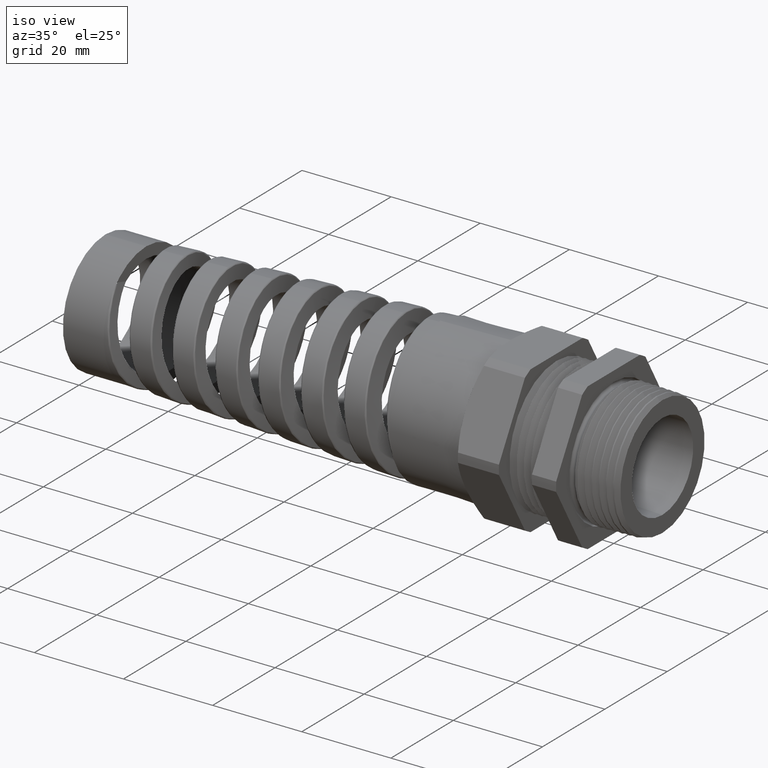
[diagram: clean part render]
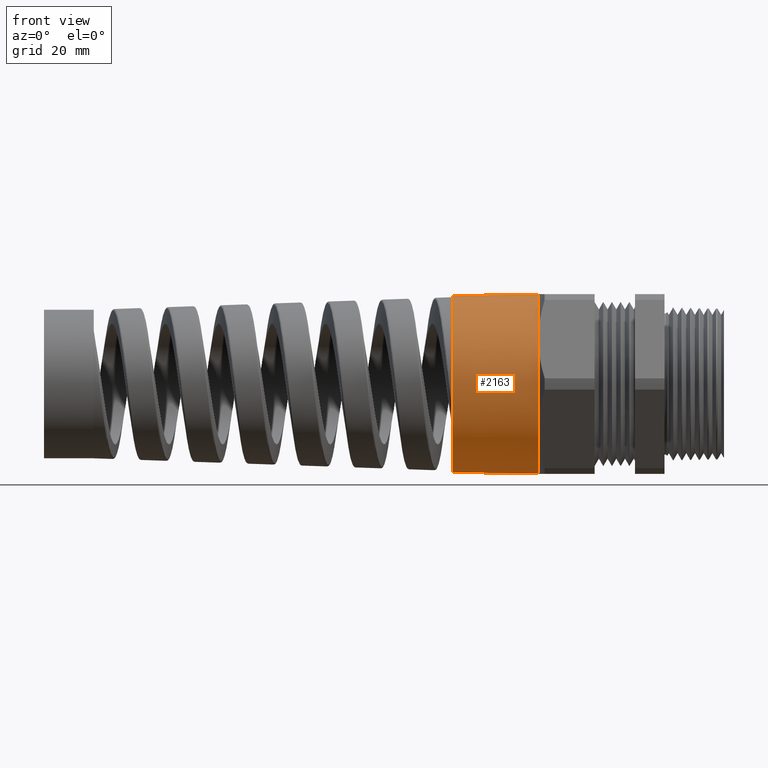
[diagram: tour spotlight — one face highlighted and labeled with its STEP entity id]
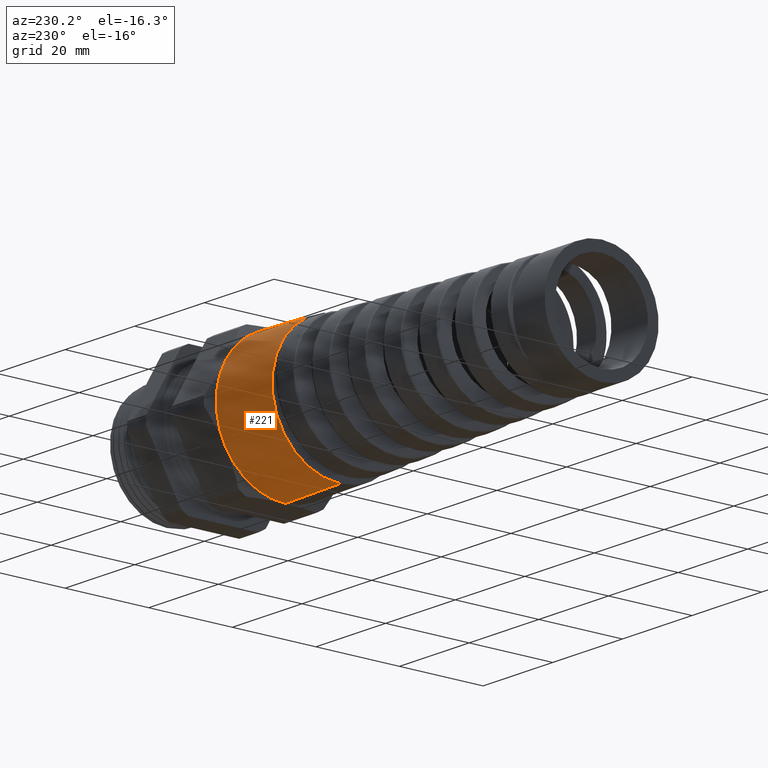
[diagram: tour spotlight — one face highlighted and labeled with its STEP entity id]
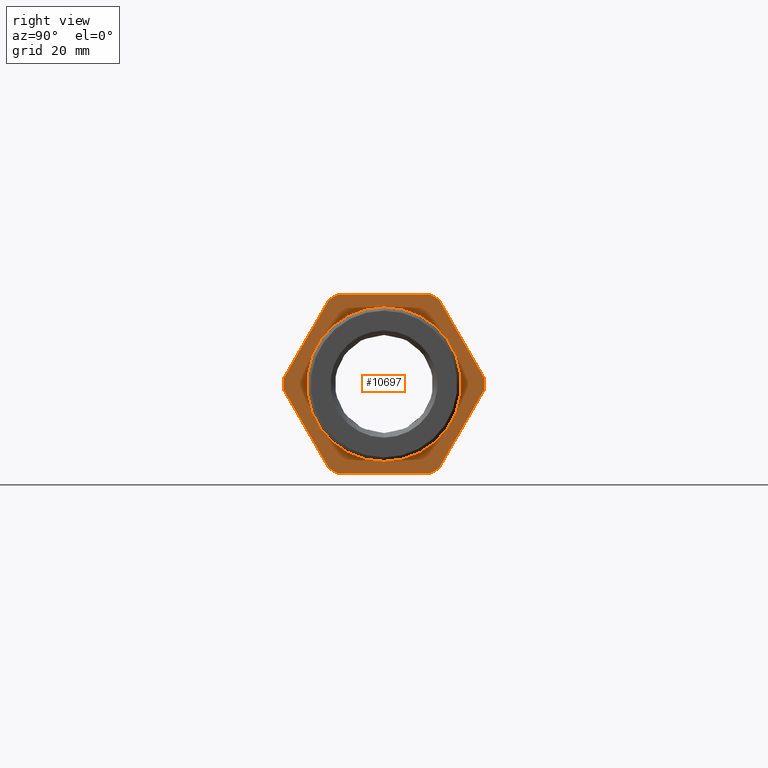
[diagram: tour spotlight — one face highlighted and labeled with its STEP entity id]
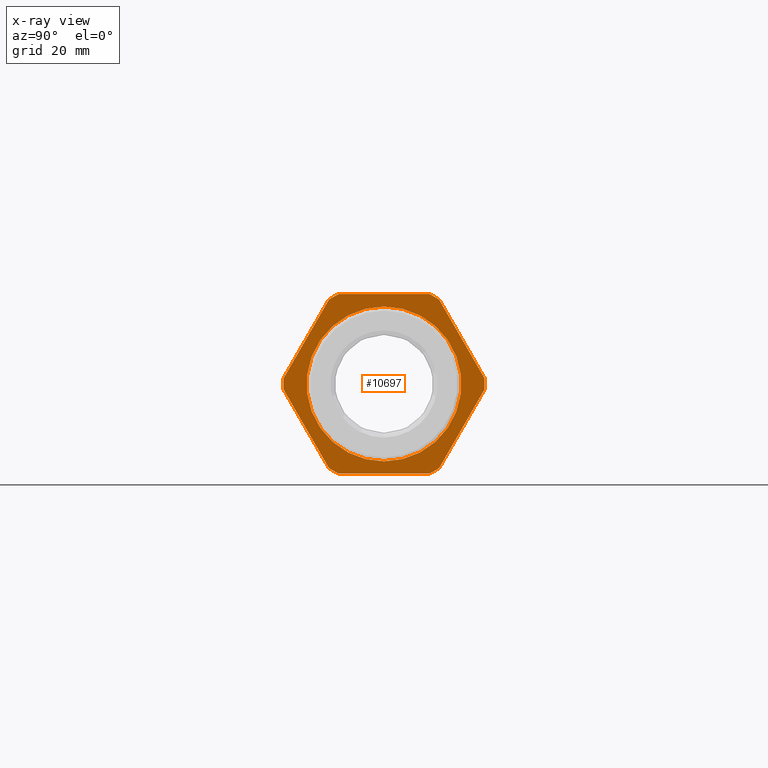
[diagram: x-ray of the same camera — body ghosted, this tour face saturated]
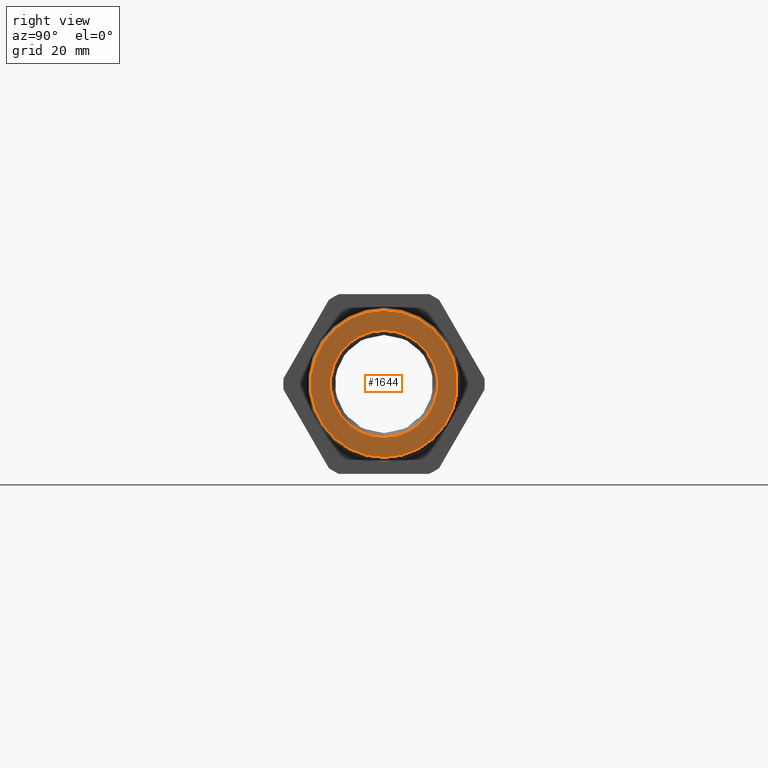
[diagram: tour spotlight — one face highlighted and labeled with its STEP entity id]
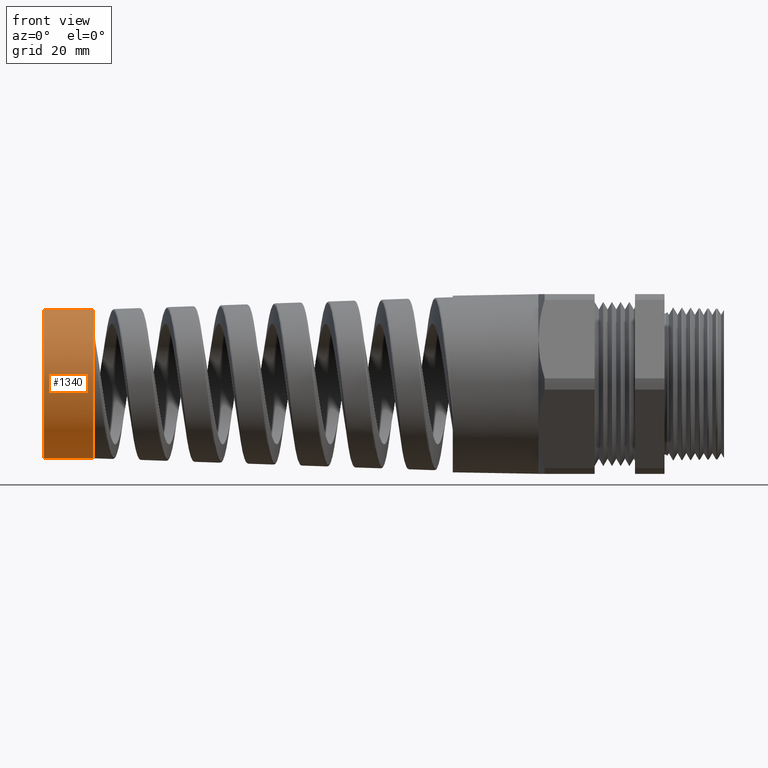
[diagram: tour spotlight — one face highlighted and labeled with its STEP entity id]
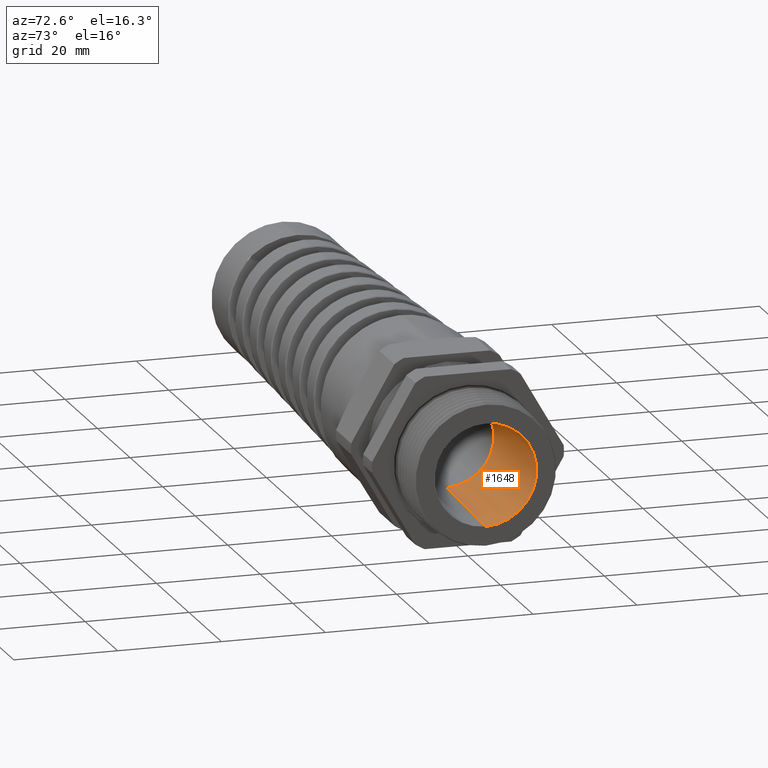
[diagram: tour spotlight — one face highlighted and labeled with its STEP entity id]
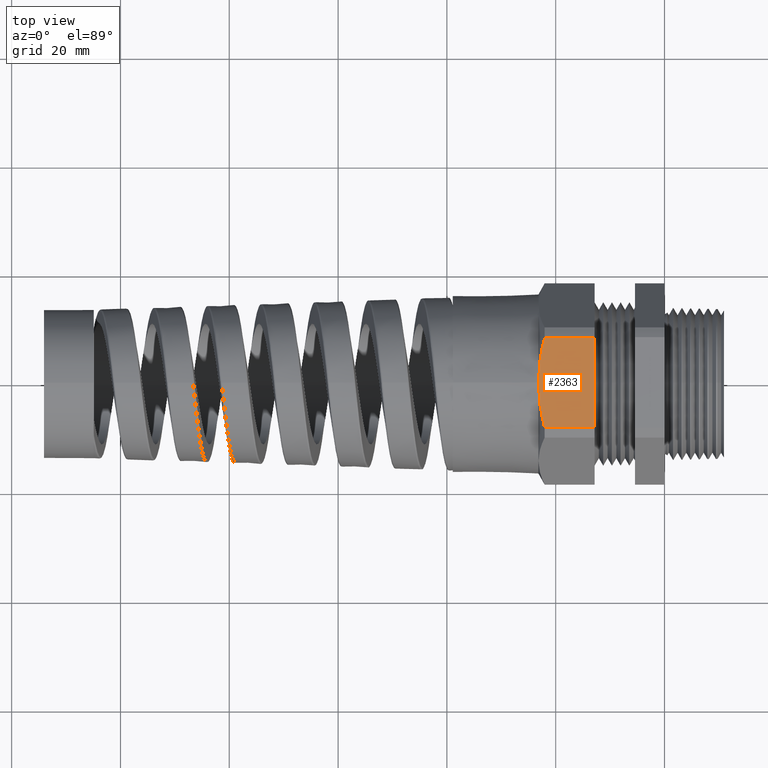
[diagram: tour spotlight — one face highlighted and labeled with its STEP entity id]
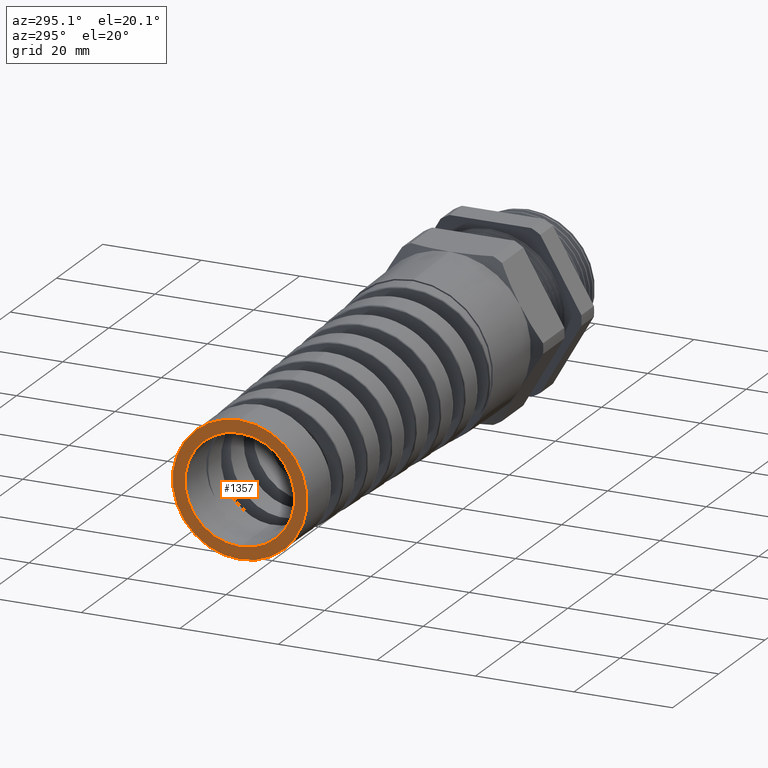
[diagram: tour spotlight — one face highlighted and labeled with its STEP entity id]
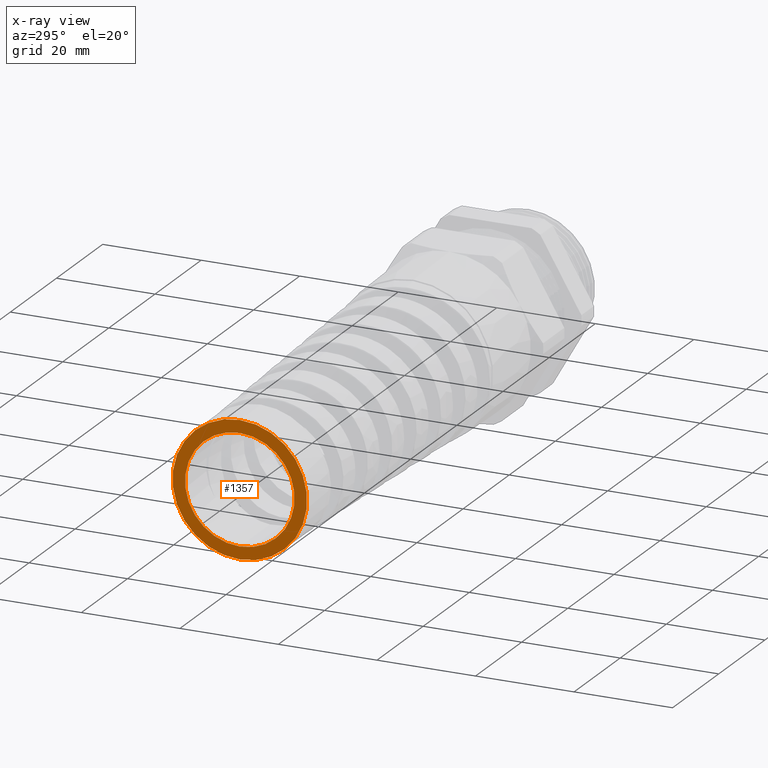
[diagram: x-ray of the same camera — body ghosted, this tour face saturated]
A machine part: a face-by-face anatomy tour. The part has 157 B-rep faces; the first image is the clean iso view, then the 8 largest visible faces are spotlighted one at a time (largest first), each with its STEP entity span.

Face 1 — front view, entity #2163. In plain terms, the highlighted conical surface has half-angle 1 deg.
Definition (entity closure, byte-faithful):
#2085 = ORIENTED_EDGE ( 'NONE', *, *, #2090, .T. ) ;
#2086 = VERTEX_POINT ( 'NONE', #9870 ) ;
#2087 = VERTEX_POINT ( 'NONE', #9869 ) ;
#2088 = ORIENTED_EDGE ( 'NONE', *, *, #2092, .F. ) ;
#2090 = EDGE_CURVE ( 'NONE', #2086, #2087, #9867, .T. ) ;
#2092 = EDGE_CURVE ( 'NONE', #2142, #2087, #9925, .T. ) ;
#2131 = ORIENTED_EDGE ( 'NONE', *, *, #2141, .T. ) ;
#2132 = ORIENTED_EDGE ( 'NONE', *, *, #2140, .T. ) ;
#2136 = VERTEX_POINT ( 'NONE', #10005 ) ;
#2137 = ORIENTED_EDGE ( 'NONE', *, *, #2138, .T. ) ;
#2138 = EDGE_CURVE ( 'NONE', #2169, #2139, #10004, .T. ) ;
#2139 = VERTEX_POINT ( 'NONE', #10000 ) ;
#2140 = EDGE_CURVE ( 'NONE', #2139, #2136, #9998, .T. ) ;
#2141 = EDGE_CURVE ( 'NONE', #2136, #2086, #9991, .T. ) ;
#2142 = VERTEX_POINT ( 'NONE', #9987 ) ;
#2158 = ORIENTED_EDGE ( 'NONE', *, *, #2165, .F. ) ;
#2163 = ADVANCED_FACE ( 'NONE', ( #10027 ), #10023, .T. ) ;
#2165 = EDGE_CURVE ( 'NONE', #2169, #2142, #10013, .T. ) ;
#2169 = VERTEX_POINT ( 'NONE', #10082 ) ;
#2170 = EDGE_LOOP ( 'NONE', ( #2158, #2137, #2132, #2131, #2085, #2088 ) ) ;
#9863 = DIRECTION ( 'NONE',  ( 0.0000000000000000000, 0.0000000000000000000, 1.000000000000000000 ) ) ;
#9864 = DIRECTION ( 'NONE',  ( -1.000000000000000000, 0.0000000000000000000, 0.0000000000000000000 ) ) ;
#9865 = CARTESIAN_POINT ( 'NONE',  ( -0.9125000000000002000, 0.0000000000000000000, 0.0000000000000000000 ) ) ;
#9866 = AXIS2_PLACEMENT_3D ( 'NONE', #9865, #9864, #9863 ) ;
#9867 = CIRCLE ( 'NONE', #9866, 0.6499999999999998000 ) ;
#9869 = CARTESIAN_POINT ( 'NONE',  ( -0.9125000000000002000, 0.0000000000000000000, 0.6499999999999998000 ) ) ;
#9870 = CARTESIAN_POINT ( 'NONE',  ( -0.9125000000000002000, -0.5629165124598850500, 0.3249999999999999600 ) ) ;
#9919 = DIRECTION ( 'NONE',  ( 0.9998476951563912700, 0.0000000000000000000, 0.01745240643728355000 ) ) ;
#9920 = VECTOR ( 'NONE', #9919, 39.37007874015748100 ) ;
#9921 = CARTESIAN_POINT ( 'NONE',  ( -0.9125000000000002000, 0.0000000000000000000, 0.6499999999999999100 ) ) ;
#9925 = LINE ( 'NONE', #9921, #9920 ) ;
#9987 = CARTESIAN_POINT ( 'NONE',  ( -1.532120000000000100, 0.0000000000000000000, 0.6391844926691776500 ) ) ;
#9988 = DIRECTION ( 'NONE',  ( 0.0000000000000000000, 0.0000000000000000000, 1.000000000000000000 ) ) ;
#9989 = DIRECTION ( 'NONE',  ( -1.000000000000000000, 0.0000000000000000000, 0.0000000000000000000 ) ) ;
#9990 = AXIS2_PLACEMENT_3D ( 'NONE', #9999, #9989, #9988 ) ;
#9991 = CIRCLE ( 'NONE', #9990, 0.6499999999999998000 ) ;
#9992 = DIRECTION ( 'NONE',  ( 0.0000000000000000000, 0.0000000000000000000, 1.000000000000000000 ) ) ;
#9994 = DIRECTION ( 'NONE',  ( -1.000000000000000000, 0.0000000000000000000, 0.0000000000000000000 ) ) ;
#9995 = CARTESIAN_POINT ( 'NONE',  ( -0.9125000000000002000, 0.0000000000000000000, 0.0000000000000000000 ) ) ;
#9997 = AXIS2_PLACEMENT_3D ( 'NONE', #9995, #9994, #9992 ) ;
#9998 = CIRCLE ( 'NONE', #9997, 0.6499999999999998000 ) ;
#9999 = CARTESIAN_POINT ( 'NONE',  ( -0.9125000000000002000, 0.0000000000000000000, 0.0000000000000000000 ) ) ;
#10000 = CARTESIAN_POINT ( 'NONE',  ( -0.9125000000000002000, 0.0000000000000000000, -0.6500000000000000200 ) ) ;
#10001 = DIRECTION ( 'NONE',  ( 0.9998476951563912700, -2.137303368083796300E-018, -0.01745240643728355000 ) ) ;
#10002 = VECTOR ( 'NONE', #10001, 39.37007874015748100 ) ;
#10003 = CARTESIAN_POINT ( 'NONE',  ( -0.9125000000000002000, -7.960204194457794200E-017, -0.6499999999999999100 ) ) ;
#10004 = LINE ( 'NONE', #10003, #10002 ) ;
#10005 = CARTESIAN_POINT ( 'NONE',  ( -0.9125000000000002000, -0.5629165124598849400, -0.3250000000000001800 ) ) ;
#10009 = DIRECTION ( 'NONE',  ( 0.0000000000000000000, 0.0000000000000000000, 1.000000000000000000 ) ) ;
#10010 = DIRECTION ( 'NONE',  ( -1.000000000000000000, 0.0000000000000000000, 0.0000000000000000000 ) ) ;
#10011 = CARTESIAN_POINT ( 'NONE',  ( -1.532120000000000100, 0.0000000000000000000, 0.0000000000000000000 ) ) ;
#10012 = AXIS2_PLACEMENT_3D ( 'NONE', #10011, #10010, #10009 ) ;
#10013 = CIRCLE ( 'NONE', #10012, 0.6391844926691776500 ) ;
#10019 = DIRECTION ( 'NONE',  ( 0.0000000000000000000, 0.0000000000000000000, 1.000000000000000000 ) ) ;
#10020 = DIRECTION ( 'NONE',  ( 1.000000000000000000, 0.0000000000000000000, 0.0000000000000000000 ) ) ;
#10021 = CARTESIAN_POINT ( 'NONE',  ( -0.9125000000000002000, 0.0000000000000000000, 0.0000000000000000000 ) ) ;
#10022 = AXIS2_PLACEMENT_3D ( 'NONE', #10021, #10020, #10019 ) ;
#10023 = CONICAL_SURFACE ( 'NONE', #10022, 0.6499999999999999100, 0.01745329251994333400 ) ;
#10027 = FACE_OUTER_BOUND ( 'NONE', #2170, .T. ) ;
#10082 = CARTESIAN_POINT ( 'NONE',  ( -1.532120000000000100, -7.893978312288564000E-017, -0.6391844926691776500 ) ) ;

Face 2 — auxiliary view, entity #221. In plain terms, the highlighted conical surface has half-angle 1 deg.
Definition (entity closure, byte-faithful):
#216 = ORIENTED_EDGE ( 'NONE', *, *, #1157, .T. ) ;
#221 = ADVANCED_FACE ( 'NONE', ( #6231 ), #6225, .T. ) ;
#817 = ORIENTED_EDGE ( 'NONE', *, *, #2138, .F. ) ;
#825 = EDGE_CURVE ( 'NONE', #2142, #2169, #3066, .T. ) ;
#841 = EDGE_LOOP ( 'NONE', ( #817, #863, #842, #845, #862, #216 ) ) ;
#842 = ORIENTED_EDGE ( 'NONE', *, *, #2092, .T. ) ;
#845 = ORIENTED_EDGE ( 'NONE', *, *, #1169, .T. ) ;
#862 = ORIENTED_EDGE ( 'NONE', *, *, #1352, .T. ) ;
#863 = ORIENTED_EDGE ( 'NONE', *, *, #825, .F. ) ;
#1157 = EDGE_CURVE ( 'NONE', #2392, #2139, #3505, .T. ) ;
#1169 = EDGE_CURVE ( 'NONE', #2087, #2537, #3483, .T. ) ;
#1352 = EDGE_CURVE ( 'NONE', #2537, #2392, #3722, .T. ) ;
#2087 = VERTEX_POINT ( 'NONE', #9869 ) ;
#2092 = EDGE_CURVE ( 'NONE', #2142, #2087, #9925, .T. ) ;
#2138 = EDGE_CURVE ( 'NONE', #2169, #2139, #10004, .T. ) ;
#2139 = VERTEX_POINT ( 'NONE', #10000 ) ;
#2142 = VERTEX_POINT ( 'NONE', #9987 ) ;
#2169 = VERTEX_POINT ( 'NONE', #10082 ) ;
#2392 = VERTEX_POINT ( 'NONE', #10608 ) ;
#2537 = VERTEX_POINT ( 'NONE', #10682 ) ;
#3065 = AXIS2_PLACEMENT_3D ( 'NONE', #3129, #3128, #3127 ) ;
#3066 = CIRCLE ( 'NONE', #3065, 0.6391844926691776500 ) ;
#3127 = DIRECTION ( 'NONE',  ( 0.0000000000000000000, 0.0000000000000000000, 1.000000000000000000 ) ) ;
#3128 = DIRECTION ( 'NONE',  ( -1.000000000000000000, 0.0000000000000000000, 0.0000000000000000000 ) ) ;
#3129 = CARTESIAN_POINT ( 'NONE',  ( -1.532120000000000100, 0.0000000000000000000, 0.0000000000000000000 ) ) ;
#3479 = DIRECTION ( 'NONE',  ( 0.0000000000000000000, 0.0000000000000000000, 1.000000000000000000 ) ) ;
#3480 = DIRECTION ( 'NONE',  ( -1.000000000000000000, 0.0000000000000000000, 0.0000000000000000000 ) ) ;
#3481 = CARTESIAN_POINT ( 'NONE',  ( -0.9125000000000002000, 0.0000000000000000000, 0.0000000000000000000 ) ) ;
#3482 = AXIS2_PLACEMENT_3D ( 'NONE', #3481, #3480, #3479 ) ;
#3483 = CIRCLE ( 'NONE', #3482, 0.6499999999999998000 ) ;
#3501 = DIRECTION ( 'NONE',  ( 0.0000000000000000000, 0.0000000000000000000, 1.000000000000000000 ) ) ;
#3502 = DIRECTION ( 'NONE',  ( -1.000000000000000000, 0.0000000000000000000, 0.0000000000000000000 ) ) ;
#3503 = CARTESIAN_POINT ( 'NONE',  ( -0.9125000000000002000, 0.0000000000000000000, 0.0000000000000000000 ) ) ;
#3504 = AXIS2_PLACEMENT_3D ( 'NONE', #3503, #3502, #3501 ) ;
#3505 = CIRCLE ( 'NONE', #3504, 0.6499999999999998000 ) ;
#3715 = DIRECTION ( 'NONE',  ( 0.0000000000000000000, 0.0000000000000000000, 1.000000000000000000 ) ) ;
#3716 = DIRECTION ( 'NONE',  ( -1.000000000000000000, 0.0000000000000000000, 0.0000000000000000000 ) ) ;
#3717 = CARTESIAN_POINT ( 'NONE',  ( -0.9125000000000002000, 0.0000000000000000000, 0.0000000000000000000 ) ) ;
#3718 = AXIS2_PLACEMENT_3D ( 'NONE', #3717, #3716, #3715 ) ;
#3722 = CIRCLE ( 'NONE', #3718, 0.6499999999999998000 ) ;
#6221 = DIRECTION ( 'NONE',  ( 0.0000000000000000000, 0.0000000000000000000, 1.000000000000000000 ) ) ;
#6222 = DIRECTION ( 'NONE',  ( 1.000000000000000000, 0.0000000000000000000, 0.0000000000000000000 ) ) ;
#6223 = CARTESIAN_POINT ( 'NONE',  ( -0.9125000000000002000, 0.0000000000000000000, 0.0000000000000000000 ) ) ;
#6224 = AXIS2_PLACEMENT_3D ( 'NONE', #6223, #6222, #6221 ) ;
#6225 = CONICAL_SURFACE ( 'NONE', #6224, 0.6499999999999999100, 0.01745329251994333400 ) ;
#6231 = FACE_OUTER_BOUND ( 'NONE', #841, .T. ) ;
#9869 = CARTESIAN_POINT ( 'NONE',  ( -0.9125000000000002000, 0.0000000000000000000, 0.6499999999999998000 ) ) ;
#9919 = DIRECTION ( 'NONE',  ( 0.9998476951563912700, 0.0000000000000000000, 0.01745240643728355000 ) ) ;
#9920 = VECTOR ( 'NONE', #9919, 39.37007874015748100 ) ;
#9921 = CARTESIAN_POINT ( 'NONE',  ( -0.9125000000000002000, 0.0000000000000000000, 0.6499999999999999100 ) ) ;
#9925 = LINE ( 'NONE', #9921, #9920 ) ;
#9987 = CARTESIAN_POINT ( 'NONE',  ( -1.532120000000000100, 0.0000000000000000000, 0.6391844926691776500 ) ) ;
#10000 = CARTESIAN_POINT ( 'NONE',  ( -0.9125000000000002000, 0.0000000000000000000, -0.6500000000000000200 ) ) ;
#10001 = DIRECTION ( 'NONE',  ( 0.9998476951563912700, -2.137303368083796300E-018, -0.01745240643728355000 ) ) ;
#10002 = VECTOR ( 'NONE', #10001, 39.37007874015748100 ) ;
#10003 = CARTESIAN_POINT ( 'NONE',  ( -0.9125000000000002000, -7.960204194457794200E-017, -0.6499999999999999100 ) ) ;
#10004 = LINE ( 'NONE', #10003, #10002 ) ;
#10082 = CARTESIAN_POINT ( 'NONE',  ( -1.532120000000000100, -7.893978312288564000E-017, -0.6391844926691776500 ) ) ;
#10608 = CARTESIAN_POINT ( 'NONE',  ( -0.9125000000000002000, 0.5629165124598850500, -0.3250000000000000100 ) ) ;
#10682 = CARTESIAN_POINT ( 'NONE',  ( -0.9125000000000002000, 0.5629165124598849400, 0.3250000000000001800 ) ) ;

Face 3 — right view, entity #10697. An x-ray twin of the same camera follows (body ghosted, this face saturated) — the face is partly hidden behind the body. In plain terms, the highlighted planar face has unit normal (-1, 0, 0).
Definition (entity closure, byte-faithful):
#5890 = VERTEX_POINT ( 'NONE', #12089 ) ;
#6000 = EDGE_CURVE ( 'NONE', #6014, #5890, #12146, .T. ) ;
#6014 = VERTEX_POINT ( 'NONE', #12141 ) ;
#6061 = EDGE_CURVE ( 'NONE', #6808, #13511, #12281, .T. ) ;
#6480 = ORIENTED_EDGE ( 'NONE', *, *, #6061, .T. ) ;
#6808 = VERTEX_POINT ( 'NONE', #12426 ) ;
#10562 = VERTEX_POINT ( 'NONE', #12664 ) ;
#10573 = EDGE_LOOP ( 'NONE', ( #10796, #12794, #13318, #12185, #13279, #13512, #13460, #13470, #13461, #13467, #6480, #13509 ) ) ;
#10697 = ADVANCED_FACE ( 'NONE', ( #12658, #12657 ), #12656, .F. ) ;
#10796 = ORIENTED_EDGE ( 'NONE', *, *, #13475, .T. ) ;
#12089 = CARTESIAN_POINT ( 'NONE',  ( 0.0000000000000000000, 0.0000000000000000000, -0.5599999999999999400 ) ) ;
#12141 = CARTESIAN_POINT ( 'NONE',  ( 0.0000000000000000000, 6.858022075225175100E-017, 0.5599999999999999400 ) ) ;
#12142 = DIRECTION ( 'NONE',  ( 0.0000000000000000000, 0.0000000000000000000, 1.000000000000000000 ) ) ;
#12143 = DIRECTION ( 'NONE',  ( 1.000000000000000000, 0.0000000000000000000, 0.0000000000000000000 ) ) ;
#12144 = CARTESIAN_POINT ( 'NONE',  ( 0.0000000000000000000, 0.0000000000000000000, 0.0000000000000000000 ) ) ;
#12145 = AXIS2_PLACEMENT_3D ( 'NONE', #12144, #12143, #12142 ) ;
#12146 = CIRCLE ( 'NONE', #12145, 0.5599999999999999400 ) ;
#12175 = VERTEX_POINT ( 'NONE', #12689 ) ;
#12185 = ORIENTED_EDGE ( 'NONE', *, *, #13314, .F. ) ;
#12278 = DIRECTION ( 'NONE',  ( 0.0000000000000000000, -0.5000000000000000000, -0.8660254037844386000 ) ) ;
#12279 = VECTOR ( 'NONE', #12278, 39.37007874015748900 ) ;
#12280 = CARTESIAN_POINT ( 'NONE',  ( 0.0000000000000000000, -0.3989927496919439800, 0.6089242856819407900 ) ) ;
#12281 = LINE ( 'NONE', #12280, #12279 ) ;
#12426 = CARTESIAN_POINT ( 'NONE',  ( 0.0000000000000000000, -0.3989927496919437600, 0.6089242856819410100 ) ) ;
#12616 = VERTEX_POINT ( 'NONE', #12684 ) ;
#12652 = DIRECTION ( 'NONE',  ( 0.0000000000000000000, 0.0000000000000000000, 1.000000000000000000 ) ) ;
#12653 = DIRECTION ( 'NONE',  ( -1.000000000000000000, 0.0000000000000000000, 0.0000000000000000000 ) ) ;
#12654 = CARTESIAN_POINT ( 'NONE',  ( 0.0000000000000000000, 0.7280000000000000900, 0.0000000000000000000 ) ) ;
#12655 = AXIS2_PLACEMENT_3D ( 'NONE', #12654, #12653, #12652 ) ;
#12656 = PLANE ( 'NONE',  #12655 ) ;
#12657 = FACE_BOUND ( 'NONE', #13514, .T. ) ;
#12658 = FACE_OUTER_BOUND ( 'NONE', #10573, .T. ) ;
#12664 = CARTESIAN_POINT ( 'NONE',  ( 0.0000000000000000000, -0.7268402752278255700, -0.04107571431805972400 ) ) ;
#12669 = VECTOR ( 'NONE', #12730, 39.37007874015748100 ) ;
#12670 = CARTESIAN_POINT ( 'NONE',  ( 0.0000000000000000000, -0.3278475255358810900, -0.6500000000000000200 ) ) ;
#12671 = LINE ( 'NONE', #12670, #12669 ) ;
#12672 = CARTESIAN_POINT ( 'NONE',  ( 0.0000000000000000000, -0.3278475255358812000, -0.6499999999999999100 ) ) ;
#12673 = DIRECTION ( 'NONE',  ( 0.0000000000000000000, 0.0000000000000000000, 1.000000000000000000 ) ) ;
#12674 = DIRECTION ( 'NONE',  ( -1.000000000000000000, 0.0000000000000000000, 0.0000000000000000000 ) ) ;
#12675 = CARTESIAN_POINT ( 'NONE',  ( 0.0000000000000000000, 0.0000000000000000000, 0.0000000000000000000 ) ) ;
#12676 = AXIS2_PLACEMENT_3D ( 'NONE', #12675, #12674, #12673 ) ;
#12677 = CIRCLE ( 'NONE', #12676, 0.7280000000000000900 ) ;
#12678 = CARTESIAN_POINT ( 'NONE',  ( 0.0000000000000000000, 0.3989927496919443200, -0.6089242856819405700 ) ) ;
#12679 = DIRECTION ( 'NONE',  ( 0.0000000000000000000, 0.5000000000000001100, 0.8660254037844386000 ) ) ;
#12680 = VECTOR ( 'NONE', #12679, 39.37007874015748100 ) ;
#12681 = CARTESIAN_POINT ( 'NONE',  ( 0.0000000000000000000, 0.3989927496919443200, -0.6089242856819405700 ) ) ;
#12682 = LINE ( 'NONE', #12681, #12680 ) ;
#12683 = CARTESIAN_POINT ( 'NONE',  ( 0.0000000000000000000, -0.3989927496919442600, -0.6089242856819405700 ) ) ;
#12684 = CARTESIAN_POINT ( 'NONE',  ( 0.0000000000000000000, 0.3278475255358810900, -0.6500000000000000200 ) ) ;
#12689 = CARTESIAN_POINT ( 'NONE',  ( 0.0000000000000000000, 0.7268402752278256800, -0.04107571431805931400 ) ) ;
#12701 = CARTESIAN_POINT ( 'NONE',  ( 0.0000000000000000000, 0.3278475255358813700, 0.6499999999999999100 ) ) ;
#12702 = LINE ( 'NONE', #12701, #12764 ) ;
#12703 = DIRECTION ( 'NONE',  ( 0.0000000000000000000, 0.0000000000000000000, 1.000000000000000000 ) ) ;
#12704 = DIRECTION ( 'NONE',  ( -1.000000000000000000, 0.0000000000000000000, 0.0000000000000000000 ) ) ;
#12705 = CARTESIAN_POINT ( 'NONE',  ( 0.0000000000000000000, 0.0000000000000000000, 0.0000000000000000000 ) ) ;
#12706 = AXIS2_PLACEMENT_3D ( 'NONE', #12705, #12704, #12703 ) ;
#12707 = CIRCLE ( 'NONE', #12706, 0.7280000000000000900 ) ;
#12708 = DIRECTION ( 'NONE',  ( 0.0000000000000000000, 0.5000000000000003300, -0.8660254037844383700 ) ) ;
#12709 = VECTOR ( 'NONE', #12708, 39.37007874015748100 ) ;
#12710 = CARTESIAN_POINT ( 'NONE',  ( 0.0000000000000000000, -0.7268402752278255700, -0.04107571431805972400 ) ) ;
#12711 = LINE ( 'NONE', #12710, #12709 ) ;
#12712 = DIRECTION ( 'NONE',  ( 0.0000000000000000000, 0.0000000000000000000, 1.000000000000000000 ) ) ;
#12713 = DIRECTION ( 'NONE',  ( -1.000000000000000000, 0.0000000000000000000, 0.0000000000000000000 ) ) ;
#12714 = CARTESIAN_POINT ( 'NONE',  ( 0.0000000000000000000, 0.0000000000000000000, 0.0000000000000000000 ) ) ;
#12715 = AXIS2_PLACEMENT_3D ( 'NONE', #12714, #12713, #12712 ) ;
#12716 = CIRCLE ( 'NONE', #12715, 0.7280000000000000900 ) ;
#12717 = CARTESIAN_POINT ( 'NONE',  ( 0.0000000000000000000, 0.3989927496919443200, 0.6089242856819405700 ) ) ;
#12718 = CARTESIAN_POINT ( 'NONE',  ( 0.0000000000000000000, -0.3278475255358813700, 0.6499999999999999100 ) ) ;
#12719 = DIRECTION ( 'NONE',  ( 0.0000000000000000000, -0.5000000000000003300, 0.8660254037844383700 ) ) ;
#12720 = VECTOR ( 'NONE', #12719, 39.37007874015748100 ) ;
#12721 = CARTESIAN_POINT ( 'NONE',  ( 0.0000000000000000000, 0.7268402752278256800, 0.04107571431805962700 ) ) ;
#12722 = LINE ( 'NONE', #12721, #12720 ) ;
#12723 = CARTESIAN_POINT ( 'NONE',  ( 0.0000000000000000000, 0.7268402752278255700, 0.04107571431805956400 ) ) ;
#12724 = CARTESIAN_POINT ( 'NONE',  ( 0.0000000000000000000, 0.3278475255358814200, 0.6499999999999998000 ) ) ;
#12725 = DIRECTION ( 'NONE',  ( 0.0000000000000000000, 0.0000000000000000000, 1.000000000000000000 ) ) ;
#12726 = DIRECTION ( 'NONE',  ( -1.000000000000000000, 0.0000000000000000000, 0.0000000000000000000 ) ) ;
#12727 = CARTESIAN_POINT ( 'NONE',  ( 0.0000000000000000000, 0.0000000000000000000, 0.0000000000000000000 ) ) ;
#12728 = AXIS2_PLACEMENT_3D ( 'NONE', #12727, #12726, #12725 ) ;
#12729 = CIRCLE ( 'NONE', #12728, 0.7280000000000000900 ) ;
#12730 = DIRECTION ( 'NONE',  ( 0.0000000000000000000, 1.000000000000000000, 0.0000000000000000000 ) ) ;
#12734 = VERTEX_POINT ( 'NONE', #12683 ) ;
#12735 = DIRECTION ( 'NONE',  ( 0.0000000000000000000, 0.0000000000000000000, 1.000000000000000000 ) ) ;
#12736 = DIRECTION ( 'NONE',  ( 1.000000000000000000, 0.0000000000000000000, 0.0000000000000000000 ) ) ;
#12737 = CARTESIAN_POINT ( 'NONE',  ( 0.0000000000000000000, 0.0000000000000000000, 0.0000000000000000000 ) ) ;
#12738 = AXIS2_PLACEMENT_3D ( 'NONE', #12737, #12736, #12735 ) ;
#12739 = CIRCLE ( 'NONE', #12738, 0.5599999999999999400 ) ;
#12741 = CARTESIAN_POINT ( 'NONE',  ( 0.0000000000000000000, -0.7268402752278255700, 0.04107571431805911300 ) ) ;
#12742 = DIRECTION ( 'NONE',  ( 0.0000000000000000000, 0.0000000000000000000, 1.000000000000000000 ) ) ;
#12743 = DIRECTION ( 'NONE',  ( -1.000000000000000000, 0.0000000000000000000, 0.0000000000000000000 ) ) ;
#12744 = CARTESIAN_POINT ( 'NONE',  ( 0.0000000000000000000, 0.0000000000000000000, 0.0000000000000000000 ) ) ;
#12745 = AXIS2_PLACEMENT_3D ( 'NONE', #12744, #12743, #12742 ) ;
#12750 = CIRCLE ( 'NONE', #12745, 0.7280000000000000900 ) ;
#12758 = DIRECTION ( 'NONE',  ( 0.0000000000000000000, 0.0000000000000000000, 1.000000000000000000 ) ) ;
#12759 = DIRECTION ( 'NONE',  ( -1.000000000000000000, 0.0000000000000000000, 0.0000000000000000000 ) ) ;
#12760 = CARTESIAN_POINT ( 'NONE',  ( 0.0000000000000000000, 0.0000000000000000000, 0.0000000000000000000 ) ) ;
#12761 = AXIS2_PLACEMENT_3D ( 'NONE', #12760, #12759, #12758 ) ;
#12762 = CIRCLE ( 'NONE', #12761, 0.7280000000000000900 ) ;
#12763 = DIRECTION ( 'NONE',  ( 0.0000000000000000000, -1.000000000000000000, 0.0000000000000000000 ) ) ;
#12764 = VECTOR ( 'NONE', #12763, 39.37007874015748100 ) ;
#12794 = ORIENTED_EDGE ( 'NONE', *, *, #13455, .F. ) ;
#13246 = EDGE_CURVE ( 'NONE', #13277, #12175, #12682, .T. ) ;
#13277 = VERTEX_POINT ( 'NONE', #12678 ) ;
#13279 = ORIENTED_EDGE ( 'NONE', *, *, #13246, .T. ) ;
#13314 = EDGE_CURVE ( 'NONE', #13277, #12616, #12677, .T. ) ;
#13315 = VERTEX_POINT ( 'NONE', #12672 ) ;
#13317 = EDGE_CURVE ( 'NONE', #13315, #12616, #12671, .T. ) ;
#13318 = ORIENTED_EDGE ( 'NONE', *, *, #13317, .T. ) ;
#13455 = EDGE_CURVE ( 'NONE', #13315, #12734, #12729, .T. ) ;
#13460 = ORIENTED_EDGE ( 'NONE', *, *, #13466, .T. ) ;
#13461 = ORIENTED_EDGE ( 'NONE', *, *, #13478, .T. ) ;
#13462 = VERTEX_POINT ( 'NONE', #12724 ) ;
#13463 = VERTEX_POINT ( 'NONE', #12723 ) ;
#13466 = EDGE_CURVE ( 'NONE', #13463, #13471, #12722, .T. ) ;
#13467 = ORIENTED_EDGE ( 'NONE', *, *, #13476, .F. ) ;
#13469 = VERTEX_POINT ( 'NONE', #12718 ) ;
#13470 = ORIENTED_EDGE ( 'NONE', *, *, #13474, .F. ) ;
#13471 = VERTEX_POINT ( 'NONE', #12717 ) ;
#13474 = EDGE_CURVE ( 'NONE', #13462, #13471, #12716, .T. ) ;
#13475 = EDGE_CURVE ( 'NONE', #10562, #12734, #12711, .T. ) ;
#13476 = EDGE_CURVE ( 'NONE', #6808, #13469, #12707, .T. ) ;
#13478 = EDGE_CURVE ( 'NONE', #13462, #13469, #12702, .T. ) ;
#13502 = EDGE_CURVE ( 'NONE', #13463, #12175, #12762, .T. ) ;
#13504 = ORIENTED_EDGE ( 'NONE', *, *, #6000, .F. ) ;
#13509 = ORIENTED_EDGE ( 'NONE', *, *, #13510, .F. ) ;
#13510 = EDGE_CURVE ( 'NONE', #10562, #13511, #12750, .T. ) ;
#13511 = VERTEX_POINT ( 'NONE', #12741 ) ;
#13512 = ORIENTED_EDGE ( 'NONE', *, *, #13502, .F. ) ;
#13514 = EDGE_LOOP ( 'NONE', ( #13516, #13504 ) ) ;
#13515 = EDGE_CURVE ( 'NONE', #5890, #6014, #12739, .T. ) ;
#13516 = ORIENTED_EDGE ( 'NONE', *, *, #13515, .F. ) ;

Face 4 — right view, entity #1644. In plain terms, the highlighted planar face has unit normal (-1, 0, 0).
Definition (entity closure, byte-faithful):
#275 = VERTEX_POINT ( 'NONE', #2811 ) ;
#729 = EDGE_CURVE ( 'NONE', #10827, #8432, #2986, .T. ) ;
#1142 = VERTEX_POINT ( 'NONE', #3460 ) ;
#1497 = ORIENTED_EDGE ( 'NONE', *, *, #1682, .T. ) ;
#1498 = EDGE_LOOP ( 'NONE', ( #1497, #1831 ) ) ;
#1514 = EDGE_LOOP ( 'NONE', ( #1519, #1518 ) ) ;
#1518 = ORIENTED_EDGE ( 'NONE', *, *, #10677, .T. ) ;
#1519 = ORIENTED_EDGE ( 'NONE', *, *, #729, .T. ) ;
#1644 = ADVANCED_FACE ( 'NONE', ( #9172, #9171 ), #9170, .F. ) ;
#1645 = EDGE_CURVE ( 'NONE', #275, #1142, #9256, .T. ) ;
#1682 = EDGE_CURVE ( 'NONE', #1142, #275, #9328, .T. ) ;
#1831 = ORIENTED_EDGE ( 'NONE', *, *, #1645, .T. ) ;
#2811 = CARTESIAN_POINT ( 'NONE',  ( 0.4299999999999999400, 4.747710957284751000E-017, 0.3876800201160279200 ) ) ;
#2982 = DIRECTION ( 'NONE',  ( 0.0000000000000000000, 0.0000000000000000000, 1.000000000000000000 ) ) ;
#2983 = DIRECTION ( 'NONE',  ( 1.000000000000000000, 0.0000000000000000000, 0.0000000000000000000 ) ) ;
#2984 = CARTESIAN_POINT ( 'NONE',  ( 0.4299999999999999400, 0.0000000000000000000, 0.0000000000000000000 ) ) ;
#2985 = AXIS2_PLACEMENT_3D ( 'NONE', #2984, #2983, #2982 ) ;
#2986 = CIRCLE ( 'NONE', #2985, 0.5312400537252496300 ) ;
#3460 = CARTESIAN_POINT ( 'NONE',  ( 0.4299999999999999400, 0.0000000000000000000, -0.3876800201160279200 ) ) ;
#8432 = VERTEX_POINT ( 'NONE', #12531 ) ;
#9170 = PLANE ( 'NONE',  #9263 ) ;
#9171 = FACE_BOUND ( 'NONE', #1498, .T. ) ;
#9172 = FACE_OUTER_BOUND ( 'NONE', #1514, .T. ) ;
#9252 = DIRECTION ( 'NONE',  ( 0.0000000000000000000, 0.0000000000000000000, 1.000000000000000000 ) ) ;
#9254 = DIRECTION ( 'NONE',  ( -1.000000000000000000, 0.0000000000000000000, 0.0000000000000000000 ) ) ;
#9255 = AXIS2_PLACEMENT_3D ( 'NONE', #9264, #9254, #9252 ) ;
#9256 = CIRCLE ( 'NONE', #9255, 0.3876800201160279200 ) ;
#9259 = DIRECTION ( 'NONE',  ( 0.0000000000000000000, 0.0000000000000000000, 1.000000000000000000 ) ) ;
#9260 = DIRECTION ( 'NONE',  ( -1.000000000000000000, 0.0000000000000000000, 0.0000000000000000000 ) ) ;
#9261 = CARTESIAN_POINT ( 'NONE',  ( 0.4299999999999999400, 0.5437400537252496900, 0.0000000000000000000 ) ) ;
#9263 = AXIS2_PLACEMENT_3D ( 'NONE', #9261, #9260, #9259 ) ;
#9264 = CARTESIAN_POINT ( 'NONE',  ( 0.4299999999999999400, 0.0000000000000000000, 0.0000000000000000000 ) ) ;
#9322 = DIRECTION ( 'NONE',  ( 0.0000000000000000000, 0.0000000000000000000, 1.000000000000000000 ) ) ;
#9324 = DIRECTION ( 'NONE',  ( -1.000000000000000000, 0.0000000000000000000, 0.0000000000000000000 ) ) ;
#9326 = CARTESIAN_POINT ( 'NONE',  ( 0.4299999999999999400, 0.0000000000000000000, 0.0000000000000000000 ) ) ;
#9327 = AXIS2_PLACEMENT_3D ( 'NONE', #9326, #9324, #9322 ) ;
#9328 = CIRCLE ( 'NONE', #9327, 0.3876800201160279200 ) ;
#10677 = EDGE_CURVE ( 'NONE', #8432, #10827, #12663, .T. ) ;
#10827 = VERTEX_POINT ( 'NONE', #12651 ) ;
#12531 = CARTESIAN_POINT ( 'NONE',  ( 0.4299999999999999400, 6.516468505405927200E-017, -0.5312400537252496300 ) ) ;
#12651 = CARTESIAN_POINT ( 'NONE',  ( 0.4299999999999999400, 0.0000000000000000000, 0.5312400537252496300 ) ) ;
#12659 = DIRECTION ( 'NONE',  ( 0.0000000000000000000, 0.0000000000000000000, 1.000000000000000000 ) ) ;
#12660 = DIRECTION ( 'NONE',  ( 1.000000000000000000, 0.0000000000000000000, 0.0000000000000000000 ) ) ;
#12661 = CARTESIAN_POINT ( 'NONE',  ( 0.4299999999999999400, 0.0000000000000000000, 0.0000000000000000000 ) ) ;
#12662 = AXIS2_PLACEMENT_3D ( 'NONE', #12661, #12660, #12659 ) ;
#12663 = CIRCLE ( 'NONE', #12662, 0.5312400537252496300 ) ;

Face 5 — front view, entity #1340. In plain terms, the highlighted cylindrical surface (partial cylindrical patch) has radius 13.6545 mm, axis along (1, 0, 0).
Definition (entity closure, byte-faithful):
#522 = VERTEX_POINT ( 'NONE', #2834 ) ;
#523 = VERTEX_POINT ( 'NONE', #2833 ) ;
#532 = VERTEX_POINT ( 'NONE', #2966 ) ;
#536 = EDGE_CURVE ( 'NONE', #532, #523, #2960, .T. ) ;
#1339 = EDGE_LOOP ( 'NONE', ( #1375, #1383, #1374, #1368, #1389 ) ) ;
#1340 = ADVANCED_FACE ( 'NONE', ( #3676 ), #3675, .T. ) ;
#1359 = EDGE_CURVE ( 'NONE', #522, #532, #3707, .T. ) ;
#1363 = EDGE_CURVE ( 'NONE', #1413, #523, #3700, .T. ) ;
#1368 = ORIENTED_EDGE ( 'NONE', *, *, #1410, .F. ) ;
#1374 = ORIENTED_EDGE ( 'NONE', *, *, #1658, .T. ) ;
#1375 = ORIENTED_EDGE ( 'NONE', *, *, #536, .F. ) ;
#1383 = ORIENTED_EDGE ( 'NONE', *, *, #1359, .F. ) ;
#1389 = ORIENTED_EDGE ( 'NONE', *, *, #1363, .T. ) ;
#1410 = EDGE_CURVE ( 'NONE', #1413, #1688, #8718, .T. ) ;
#1413 = VERTEX_POINT ( 'NONE', #8719 ) ;
#1658 = EDGE_CURVE ( 'NONE', #522, #1688, #9304, .T. ) ;
#1688 = VERTEX_POINT ( 'NONE', #9371 ) ;
#2833 = CARTESIAN_POINT ( 'NONE',  ( -4.130799999999999800, 6.583458507736329500E-017, 0.5375801833083619900 ) ) ;
#2834 = CARTESIAN_POINT ( 'NONE',  ( -4.489999999999999300, 0.0000000000000000000, -0.5375801833083619900 ) ) ;
#2957 = DIRECTION ( 'NONE',  ( 1.000000000000000000, 0.0000000000000000000, 0.0000000000000000000 ) ) ;
#2958 = VECTOR ( 'NONE', #2957, 39.37007874015748100 ) ;
#2959 = CARTESIAN_POINT ( 'NONE',  ( -4.489999999999999300, 6.583458507736329500E-017, 0.5375801833083619900 ) ) ;
#2960 = LINE ( 'NONE', #2959, #2958 ) ;
#2966 = CARTESIAN_POINT ( 'NONE',  ( -4.489999999999999300, 6.583458507736329500E-017, 0.5375801833083619900 ) ) ;
#3671 = DIRECTION ( 'NONE',  ( 0.0000000000000000000, 0.0000000000000000000, -1.000000000000000000 ) ) ;
#3672 = DIRECTION ( 'NONE',  ( 1.000000000000000000, 0.0000000000000000000, 0.0000000000000000000 ) ) ;
#3673 = AXIS2_PLACEMENT_3D ( 'NONE', #3681, #3672, #3671 ) ;
#3675 = CYLINDRICAL_SURFACE ( 'NONE', #3673, 0.5375801833083619900 ) ;
#3676 = FACE_OUTER_BOUND ( 'NONE', #1339, .T. ) ;
#3681 = CARTESIAN_POINT ( 'NONE',  ( -4.489999999999999300, 0.0000000000000000000, 0.0000000000000000000 ) ) ;
#3692 = DIRECTION ( 'NONE',  ( 0.0000000000000000000, 0.0000000000000000000, 1.000000000000000000 ) ) ;
#3693 = DIRECTION ( 'NONE',  ( -1.000000000000000000, 0.0000000000000000000, 0.0000000000000000000 ) ) ;
#3694 = CARTESIAN_POINT ( 'NONE',  ( -4.130799999999999800, 0.0000000000000000000, 0.0000000000000000000 ) ) ;
#3695 = AXIS2_PLACEMENT_3D ( 'NONE', #3694, #3693, #3692 ) ;
#3700 = CIRCLE ( 'NONE', #3695, 0.5375801833083619900 ) ;
#3703 = DIRECTION ( 'NONE',  ( 0.0000000000000000000, 0.0000000000000000000, 1.000000000000000000 ) ) ;
#3704 = DIRECTION ( 'NONE',  ( -1.000000000000000000, 0.0000000000000000000, 0.0000000000000000000 ) ) ;
#3705 = CARTESIAN_POINT ( 'NONE',  ( -4.489999999999999300, 0.0000000000000000000, 0.0000000000000000000 ) ) ;
#3706 = AXIS2_PLACEMENT_3D ( 'NONE', #3705, #3704, #3703 ) ;
#3707 = CIRCLE ( 'NONE', #3706, 0.5375801833083619900 ) ;
#8714 = DIRECTION ( 'NONE',  ( 0.0000000000000000000, 0.0000000000000000000, -1.000000000000000000 ) ) ;
#8715 = DIRECTION ( 'NONE',  ( 1.000000000000000000, 0.0000000000000000000, 0.0000000000000000000 ) ) ;
#8716 = CARTESIAN_POINT ( 'NONE',  ( -4.130799999999999800, 0.0000000000000000000, 0.0000000000000000000 ) ) ;
#8717 = AXIS2_PLACEMENT_3D ( 'NONE', #8716, #8715, #8714 ) ;
#8718 = CIRCLE ( 'NONE', #8717, 0.5375801833083612100 ) ;
#8719 = CARTESIAN_POINT ( 'NONE',  ( -4.130799999999999800, -0.4267726802073139600, 0.3268907048456988200 ) ) ;
#9300 = DIRECTION ( 'NONE',  ( 1.000000000000000000, 0.0000000000000000000, 0.0000000000000000000 ) ) ;
#9301 = VECTOR ( 'NONE', #9300, 39.37007874015748100 ) ;
#9303 = CARTESIAN_POINT ( 'NONE',  ( -4.489999999999999300, 0.0000000000000000000, -0.5375801833083619900 ) ) ;
#9304 = LINE ( 'NONE', #9303, #9301 ) ;
#9371 = CARTESIAN_POINT ( 'NONE',  ( -4.130799999999999800, 0.0000000000000000000, -0.5375801833083612100 ) ) ;

Face 6 — auxiliary view, entity #1648. In plain terms, the highlighted conical surface has half-angle 2 deg.
Definition (entity closure, byte-faithful):
#275 = VERTEX_POINT ( 'NONE', #2811 ) ;
#996 = VERTEX_POINT ( 'NONE', #3361 ) ;
#1003 = VERTEX_POINT ( 'NONE', #3406 ) ;
#1135 = EDGE_CURVE ( 'NONE', #996, #275, #3413, .T. ) ;
#1139 = EDGE_CURVE ( 'NONE', #1003, #1142, #3474, .T. ) ;
#1142 = VERTEX_POINT ( 'NONE', #3460 ) ;
#1476 = EDGE_LOOP ( 'NONE', ( #1646, #1643, #1638, #1647 ) ) ;
#1538 = EDGE_CURVE ( 'NONE', #996, #1003, #9203, .T. ) ;
#1638 = ORIENTED_EDGE ( 'NONE', *, *, #1139, .T. ) ;
#1643 = ORIENTED_EDGE ( 'NONE', *, *, #1538, .T. ) ;
#1645 = EDGE_CURVE ( 'NONE', #275, #1142, #9256, .T. ) ;
#1646 = ORIENTED_EDGE ( 'NONE', *, *, #1135, .F. ) ;
#1647 = ORIENTED_EDGE ( 'NONE', *, *, #1645, .F. ) ;
#1648 = ADVANCED_FACE ( 'NONE', ( #9250 ), #9249, .F. ) ;
#2811 = CARTESIAN_POINT ( 'NONE',  ( 0.4299999999999999400, 4.747710957284751000E-017, 0.3876800201160279200 ) ) ;
#3361 = CARTESIAN_POINT ( 'NONE',  ( -0.5058333333333334700, 0.0000000000000000000, 0.3549999999999999800 ) ) ;
#3406 = CARTESIAN_POINT ( 'NONE',  ( -0.5058333333333334700, 4.347496136973103500E-017, -0.3549999999999999800 ) ) ;
#3412 = CARTESIAN_POINT ( 'NONE',  ( -0.5058333333333334700, 4.347496136973103500E-017, 0.3549999999999999800 ) ) ;
#3413 = LINE ( 'NONE', #3412, #3478 ) ;
#3460 = CARTESIAN_POINT ( 'NONE',  ( 0.4299999999999999400, 0.0000000000000000000, -0.3876800201160279200 ) ) ;
#3467 = DIRECTION ( 'NONE',  ( 0.9993908270190957600, 0.0000000000000000000, -0.03489949670250173200 ) ) ;
#3468 = VECTOR ( 'NONE', #3467, 39.37007874015748900 ) ;
#3469 = CARTESIAN_POINT ( 'NONE',  ( -0.5058333333333334700, 0.0000000000000000000, -0.3549999999999999800 ) ) ;
#3474 = LINE ( 'NONE', #3469, #3468 ) ;
#3477 = DIRECTION ( 'NONE',  ( 0.9993908270190957600, 4.273955692857235800E-018, 0.03489949670250173200 ) ) ;
#3478 = VECTOR ( 'NONE', #3477, 39.37007874015748900 ) ;
#9197 = DIRECTION ( 'NONE',  ( 0.0000000000000000000, 0.0000000000000000000, 1.000000000000000000 ) ) ;
#9199 = DIRECTION ( 'NONE',  ( -1.000000000000000000, 0.0000000000000000000, 0.0000000000000000000 ) ) ;
#9200 = CARTESIAN_POINT ( 'NONE',  ( -0.5058333333333334700, 0.0000000000000000000, 0.0000000000000000000 ) ) ;
#9201 = AXIS2_PLACEMENT_3D ( 'NONE', #9200, #9199, #9197 ) ;
#9203 = CIRCLE ( 'NONE', #9201, 0.3549999999999999800 ) ;
#9244 = DIRECTION ( 'NONE',  ( 0.0000000000000000000, 0.0000000000000000000, -1.000000000000000000 ) ) ;
#9245 = DIRECTION ( 'NONE',  ( 1.000000000000000000, 0.0000000000000000000, 0.0000000000000000000 ) ) ;
#9246 = CARTESIAN_POINT ( 'NONE',  ( -0.5058333333333334700, 0.0000000000000000000, 0.0000000000000000000 ) ) ;
#9247 = AXIS2_PLACEMENT_3D ( 'NONE', #9246, #9245, #9244 ) ;
#9249 = CONICAL_SURFACE ( 'NONE', #9247, 0.3549999999999999800, 0.03490658503988735400 ) ;
#9250 = FACE_OUTER_BOUND ( 'NONE', #1476, .T. ) ;
#9252 = DIRECTION ( 'NONE',  ( 0.0000000000000000000, 0.0000000000000000000, 1.000000000000000000 ) ) ;
#9254 = DIRECTION ( 'NONE',  ( -1.000000000000000000, 0.0000000000000000000, 0.0000000000000000000 ) ) ;
#9255 = AXIS2_PLACEMENT_3D ( 'NONE', #9264, #9254, #9252 ) ;
#9256 = CIRCLE ( 'NONE', #9255, 0.3876800201160279200 ) ;
#9264 = CARTESIAN_POINT ( 'NONE',  ( 0.4299999999999999400, 0.0000000000000000000, 0.0000000000000000000 ) ) ;

Face 7 — top view, entity #2363. In plain terms, the highlighted planar face has unit normal (0, 0, 1).
Definition (entity closure, byte-faithful):
#1850 = VERTEX_POINT ( 'NONE', #9820 ) ;
#2087 = VERTEX_POINT ( 'NONE', #9869 ) ;
#2247 = VERTEX_POINT ( 'NONE', #10348 ) ;
#2339 = EDGE_LOOP ( 'NONE', ( #2393, #2396, #2395, #2389, #2388 ) ) ;
#2363 = ADVANCED_FACE ( 'NONE', ( #10522 ), #10521, .T. ) ;
#2370 = VERTEX_POINT ( 'NONE', #10512 ) ;
#2385 = EDGE_CURVE ( 'NONE', #2247, #1850, #10546, .T. ) ;
#2387 = EDGE_CURVE ( 'NONE', #1850, #13848, #10531, .T. ) ;
#2388 = ORIENTED_EDGE ( 'NONE', *, *, #2387, .T. ) ;
#2389 = ORIENTED_EDGE ( 'NONE', *, *, #2385, .T. ) ;
#2390 = EDGE_CURVE ( 'NONE', #2087, #2247, #10525, .T. ) ;
#2393 = ORIENTED_EDGE ( 'NONE', *, *, #13845, .F. ) ;
#2395 = ORIENTED_EDGE ( 'NONE', *, *, #2390, .T. ) ;
#2396 = ORIENTED_EDGE ( 'NONE', *, *, #2397, .T. ) ;
#2397 = EDGE_CURVE ( 'NONE', #2370, #2087, #10585, .T. ) ;
#9820 = CARTESIAN_POINT ( 'NONE',  ( -0.5058333333333336900, -0.3278475255358813700, 0.6499999999999999100 ) ) ;
#9869 = CARTESIAN_POINT ( 'NONE',  ( -0.9125000000000002000, 0.0000000000000000000, 0.6499999999999998000 ) ) ;
#10348 = CARTESIAN_POINT ( 'NONE',  ( -0.8674666790032094000, -0.3278475255358813700, 0.6499999999999999100 ) ) ;
#10512 = CARTESIAN_POINT ( 'NONE',  ( -0.8674666790032094000, 0.3278475255358814200, 0.6499999999999999100 ) ) ;
#10517 = DIRECTION ( 'NONE',  ( 1.000000000000000000, 0.0000000000000000000, 0.0000000000000000000 ) ) ;
#10518 = DIRECTION ( 'NONE',  ( 0.0000000000000000000, 0.0000000000000000000, 1.000000000000000000 ) ) ;
#10519 = CARTESIAN_POINT ( 'NONE',  ( -2.992185896283379200, 0.3278475255358813700, 0.6499999999999999100 ) ) ;
#10520 = AXIS2_PLACEMENT_3D ( 'NONE', #10519, #10518, #10517 ) ;
#10521 = PLANE ( 'NONE',  #10520 ) ;
#10522 = FACE_OUTER_BOUND ( 'NONE', #2339, .T. ) ;
#10525 = B_SPLINE_CURVE_WITH_KNOTS ( 'NONE', 3,
 ( #10607, #10606, #10605, #10603, #10602, #10601, #10600, #10599 ),
 .UNSPECIFIED., .F., .F.,
 ( 4, 2, 2, 4 ),
 ( 0.01739181220317290200, 0.02158069912191297100, 0.02367514258128300400, 0.02576958604065303700 ),
 .UNSPECIFIED. ) ;
#10527 = DIRECTION ( 'NONE',  ( 0.0000000000000000000, 1.000000000000000000, 0.0000000000000000000 ) ) ;
#10529 = VECTOR ( 'NONE', #10527, 39.37007874015748100 ) ;
#10530 = CARTESIAN_POINT ( 'NONE',  ( -0.5058333333333334700, 0.5936000000000000200, 0.6499999999999999100 ) ) ;
#10531 = LINE ( 'NONE', #10530, #10529 ) ;
#10543 = DIRECTION ( 'NONE',  ( 1.000000000000000000, 0.0000000000000000000, 0.0000000000000000000 ) ) ;
#10544 = VECTOR ( 'NONE', #10543, 39.37007874015748100 ) ;
#10545 = CARTESIAN_POINT ( 'NONE',  ( -2.992185896283379200, -0.3278475255358813700, 0.6499999999999999100 ) ) ;
#10546 = LINE ( 'NONE', #10545, #10544 ) ;
#10568 = CARTESIAN_POINT ( 'NONE',  ( -0.9125000000000002000, 0.0000000000000000000, 0.6499999999999998000 ) ) ;
#10569 = CARTESIAN_POINT ( 'NONE',  ( -0.9124999999999998700, 0.02757395173295366900, 0.6499999999999999100 ) ) ;
#10571 = CARTESIAN_POINT ( 'NONE',  ( -0.9114828998118287300, 0.05520937727278987100, 0.6500000000000000200 ) ) ;
#10572 = CARTESIAN_POINT ( 'NONE',  ( -0.9074366153313308000, 0.1106018392528325400, 0.6499999999999999100 ) ) ;
#10574 = CARTESIAN_POINT ( 'NONE',  ( -0.9043942047105485400, 0.1384053176497999900, 0.6500000000000000200 ) ) ;
#10575 = CARTESIAN_POINT ( 'NONE',  ( -0.8926398588338331200, 0.2207514117670415500, 0.6499999999999995800 ) ) ;
#10577 = CARTESIAN_POINT ( 'NONE',  ( -0.8812974929125843000, 0.2746528903789683400, 0.6499999999999994700 ) ) ;
#10579 = CARTESIAN_POINT ( 'NONE',  ( -0.8674666790032094000, 0.3278475255358814200, 0.6499999999999999100 ) ) ;
#10585 = B_SPLINE_CURVE_WITH_KNOTS ( 'NONE', 3,
 ( #10579, #10577, #10575, #10574, #10572, #10571, #10569, #10568 ),
 .UNSPECIFIED., .F., .F.,
 ( 4, 2, 2, 4 ),
 ( 0.009017509672233204800, 0.01320466093770305400, 0.01529823657043797800, 0.01739181220317290200 ),
 .UNSPECIFIED. ) ;
#10599 = CARTESIAN_POINT ( 'NONE',  ( -0.8674666790032094000, -0.3278475255358813700, 0.6499999999999999100 ) ) ;
#10600 = CARTESIAN_POINT ( 'NONE',  ( -0.8744367178327194800, -0.3010400885336386200, 0.6499999999999998000 ) ) ;
#10601 = CARTESIAN_POINT ( 'NONE',  ( -0.8807998016950016100, -0.2739378481188157700, 0.6499999999999999100 ) ) ;
#10602 = CARTESIAN_POINT ( 'NONE',  ( -0.8919638526390668600, -0.2194418430247451800, 0.6499999999999998000 ) ) ;
#10603 = CARTESIAN_POINT ( 'NONE',  ( -0.8967461303935014800, -0.1921455035121697200, 0.6499999999999995800 ) ) ;
#10605 = CARTESIAN_POINT ( 'NONE',  ( -0.9083882884326687200, -0.1100930136818984000, 0.6499999999999998000 ) ) ;
#10606 = CARTESIAN_POINT ( 'NONE',  ( -0.9124999999999998700, -0.05517076331331370600, 0.6499999999999998000 ) ) ;
#10607 = CARTESIAN_POINT ( 'NONE',  ( -0.9125000000000002000, 0.0000000000000000000, 0.6499999999999998000 ) ) ;
#13021 = CARTESIAN_POINT ( 'NONE',  ( -0.5058333333333336900, 0.3278475255358814200, 0.6499999999999998000 ) ) ;
#13027 = DIRECTION ( 'NONE',  ( 1.000000000000000000, 0.0000000000000000000, 0.0000000000000000000 ) ) ;
#13028 = VECTOR ( 'NONE', #13027, 39.37007874015748100 ) ;
#13029 = CARTESIAN_POINT ( 'NONE',  ( -2.992185896283379200, 0.3278475255358814200, 0.6499999999999998000 ) ) ;
#13030 = LINE ( 'NONE', #13029, #13028 ) ;
#13845 = EDGE_CURVE ( 'NONE', #2370, #13848, #13030, .T. ) ;
#13848 = VERTEX_POINT ( 'NONE', #13021 ) ;

Face 8 — auxiliary view, entity #1357. An x-ray twin of the same camera follows (body ghosted, this face saturated) — the face is partly hidden behind the body. In plain terms, the highlighted planar face has unit normal (-1, 0, 0).
Definition (entity closure, byte-faithful):
#522 = VERTEX_POINT ( 'NONE', #2834 ) ;
#532 = VERTEX_POINT ( 'NONE', #2966 ) ;
#553 = EDGE_CURVE ( 'NONE', #532, #522, #2946, .T. ) ;
#1205 = EDGE_CURVE ( 'NONE', #1679, #1707, #3617, .T. ) ;
#1221 = ORIENTED_EDGE ( 'NONE', *, *, #1205, .F. ) ;
#1224 = EDGE_LOOP ( 'NONE', ( #1227, #1221 ) ) ;
#1225 = ORIENTED_EDGE ( 'NONE', *, *, #553, .T. ) ;
#1227 = ORIENTED_EDGE ( 'NONE', *, *, #1696, .F. ) ;
#1356 = ORIENTED_EDGE ( 'NONE', *, *, #1359, .T. ) ;
#1357 = ADVANCED_FACE ( 'NONE', ( #3714, #3713 ), #3712, .T. ) ;
#1359 = EDGE_CURVE ( 'NONE', #522, #532, #3707, .T. ) ;
#1366 = EDGE_LOOP ( 'NONE', ( #1356, #1225 ) ) ;
#1679 = VERTEX_POINT ( 'NONE', #9337 ) ;
#1696 = EDGE_CURVE ( 'NONE', #1707, #1679, #9460, .T. ) ;
#1707 = VERTEX_POINT ( 'NONE', #9607 ) ;
#2834 = CARTESIAN_POINT ( 'NONE',  ( -4.489999999999999300, 0.0000000000000000000, -0.5375801833083619900 ) ) ;
#2942 = DIRECTION ( 'NONE',  ( 0.0000000000000000000, 0.0000000000000000000, 1.000000000000000000 ) ) ;
#2943 = DIRECTION ( 'NONE',  ( -1.000000000000000000, 0.0000000000000000000, 0.0000000000000000000 ) ) ;
#2944 = CARTESIAN_POINT ( 'NONE',  ( -4.489999999999999300, 0.0000000000000000000, 0.0000000000000000000 ) ) ;
#2945 = AXIS2_PLACEMENT_3D ( 'NONE', #2944, #2943, #2942 ) ;
#2946 = CIRCLE ( 'NONE', #2945, 0.5375801833083619900 ) ;
#2966 = CARTESIAN_POINT ( 'NONE',  ( -4.489999999999999300, 6.583458507736329500E-017, 0.5375801833083619900 ) ) ;
#3609 = DIRECTION ( 'NONE',  ( 0.0000000000000000000, 0.0000000000000000000, 1.000000000000000000 ) ) ;
#3610 = DIRECTION ( 'NONE',  ( -1.000000000000000000, 0.0000000000000000000, 0.0000000000000000000 ) ) ;
#3611 = CARTESIAN_POINT ( 'NONE',  ( -4.489999999999999300, 0.0000000000000000000, 0.0000000000000000000 ) ) ;
#3612 = AXIS2_PLACEMENT_3D ( 'NONE', #3611, #3610, #3609 ) ;
#3617 = CIRCLE ( 'NONE', #3612, 0.4375801833083653400 ) ;
#3703 = DIRECTION ( 'NONE',  ( 0.0000000000000000000, 0.0000000000000000000, 1.000000000000000000 ) ) ;
#3704 = DIRECTION ( 'NONE',  ( -1.000000000000000000, 0.0000000000000000000, 0.0000000000000000000 ) ) ;
#3705 = CARTESIAN_POINT ( 'NONE',  ( -4.489999999999999300, 0.0000000000000000000, 0.0000000000000000000 ) ) ;
#3706 = AXIS2_PLACEMENT_3D ( 'NONE', #3705, #3704, #3703 ) ;
#3707 = CIRCLE ( 'NONE', #3706, 0.5375801833083619900 ) ;
#3708 = DIRECTION ( 'NONE',  ( 0.0000000000000000000, 0.0000000000000000000, 1.000000000000000000 ) ) ;
#3709 = DIRECTION ( 'NONE',  ( -1.000000000000000000, 0.0000000000000000000, 0.0000000000000000000 ) ) ;
#3710 = CARTESIAN_POINT ( 'NONE',  ( -4.489999999999999300, 0.0000000000000000000, 0.0000000000000000000 ) ) ;
#3711 = AXIS2_PLACEMENT_3D ( 'NONE', #3710, #3709, #3708 ) ;
#3712 = PLANE ( 'NONE',  #3711 ) ;
#3713 = FACE_BOUND ( 'NONE', #1224, .T. ) ;
#3714 = FACE_OUTER_BOUND ( 'NONE', #1366, .T. ) ;
#9337 = CARTESIAN_POINT ( 'NONE',  ( -4.489999999999999300, 5.358811708589016600E-017, 0.4375801833083653400 ) ) ;
#9453 = DIRECTION ( 'NONE',  ( 0.0000000000000000000, 0.0000000000000000000, 1.000000000000000000 ) ) ;
#9456 = DIRECTION ( 'NONE',  ( -1.000000000000000000, 0.0000000000000000000, 0.0000000000000000000 ) ) ;
#9457 = CARTESIAN_POINT ( 'NONE',  ( -4.489999999999999300, 0.0000000000000000000, 0.0000000000000000000 ) ) ;
#9458 = AXIS2_PLACEMENT_3D ( 'NONE', #9457, #9456, #9453 ) ;
#9460 = CIRCLE ( 'NONE', #9458, 0.4375801833083653400 ) ;
#9607 = CARTESIAN_POINT ( 'NONE',  ( -4.489999999999999300, 0.0000000000000000000, -0.4375801833083653400 ) ) ;